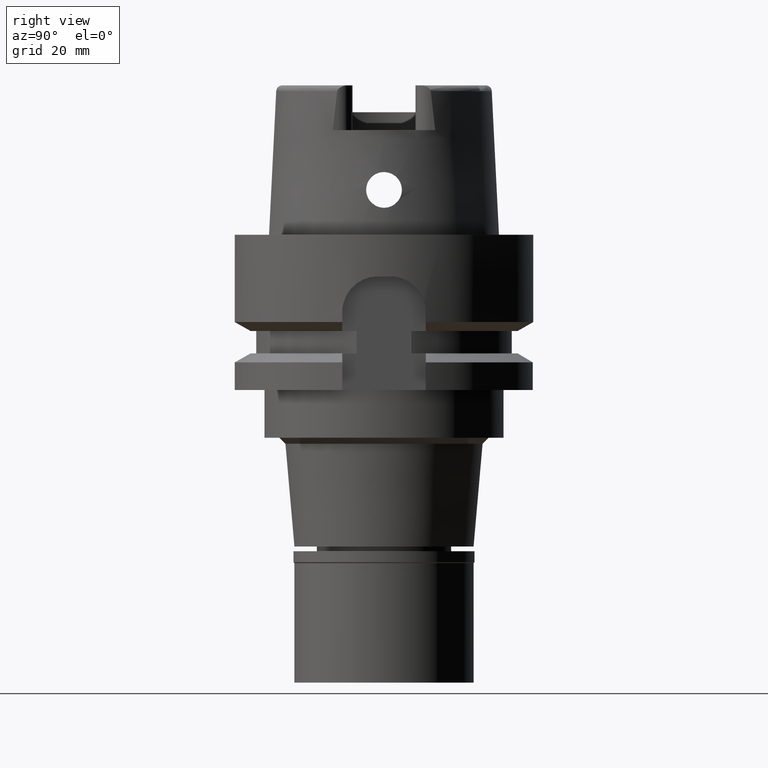
[diagram: clean part render]
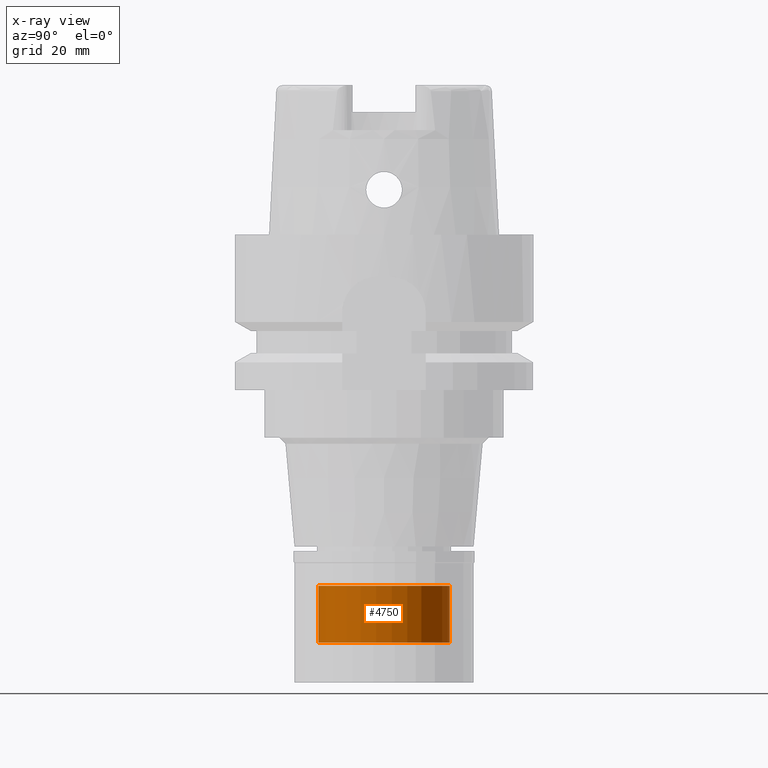
[diagram: x-ray — body ghosted, one internal face saturated and labeled with its STEP entity id]
A machine part, right view, then the same camera in x-ray: the body is ghosted and one INTERNAL B-rep face — a face not visible from any outside direction — is saturated and labeled: STEP entity #4750.
In plain terms, the highlighted cylindrical surface (partial cylindrical patch) has radius 11 mm, axis along (0, 0, 1).
Its self-contained STEP definition (entity closure, byte-faithful):
#249 = EDGE_CURVE ( 'NONE', #1513, #1695, #1521, .T. ) ;
#377 = VERTEX_POINT ( 'NONE', #1760 ) ;
#587 = CARTESIAN_POINT ( 'NONE',  ( 0.0000000000000000000, 0.0000000000000000000, -58.79999999999999716 ) ) ;
#711 = LINE ( 'NONE', #2382, #5045 ) ;
#1286 = DIRECTION ( 'NONE',  ( 0.0000000000000000000, 0.0000000000000000000, 1.000000000000000000 ) ) ;
#1326 = DIRECTION ( 'NONE',  ( 0.0000000000000000000, -1.000000000000000000, 0.0000000000000000000 ) ) ;
#1330 = DIRECTION ( 'NONE',  ( 0.0000000000000000000, 0.0000000000000000000, -1.000000000000000000 ) ) ;
#1340 = DIRECTION ( 'NONE',  ( 0.0000000000000000000, 1.000000000000000000, 0.0000000000000000000 ) ) ;
#1513 = VERTEX_POINT ( 'NONE', #2804 ) ;
#1521 = LINE ( 'NONE', #3213, #3431 ) ;
#1536 = EDGE_CURVE ( 'NONE', #377, #1695, #3152, .T. ) ;
#1673 = CYLINDRICAL_SURFACE ( 'NONE', #3290, 11.00000000000000000 ) ;
#1691 = CARTESIAN_POINT ( 'NONE',  ( 0.0000000000000000000, -11.00000000000000000, -58.79999999999999716 ) ) ;
#1695 = VERTEX_POINT ( 'NONE', #4913 ) ;
#1760 = CARTESIAN_POINT ( 'NONE',  ( 0.0000000000000000000, -11.00000000000000000, -68.29999999999999716 ) ) ;
#1975 = CIRCLE ( 'NONE', #4384, 11.00000000000000000 ) ;
#1997 = AXIS2_PLACEMENT_3D ( 'NONE', #2125, #3327, #1326 ) ;
#2125 = CARTESIAN_POINT ( 'NONE',  ( 0.0000000000000000000, 0.0000000000000000000, -68.29999999999999716 ) ) ;
#2382 = CARTESIAN_POINT ( 'NONE',  ( 0.0000000000000000000, -11.00000000000000000, -58.79999999999999716 ) ) ;
#2445 = EDGE_LOOP ( 'NONE', ( #4221, #4204, #2701, #4303 ) ) ;
#2586 = DIRECTION ( 'NONE',  ( 0.0000000000000000000, 1.000000000000000000, 0.0000000000000000000 ) ) ;
#2701 = ORIENTED_EDGE ( 'NONE', *, *, #1536, .T. ) ;
#2804 = CARTESIAN_POINT ( 'NONE',  ( 0.0000000000000000000, 11.00000000000000000, -58.79999999999999716 ) ) ;
#3152 = CIRCLE ( 'NONE', #1997, 11.00000000000000000 ) ;
#3213 = CARTESIAN_POINT ( 'NONE',  ( 0.0000000000000000000, 11.00000000000000000, -58.79999999999999716 ) ) ;
#3290 = AXIS2_PLACEMENT_3D ( 'NONE', #3369, #1286, #1340 ) ;
#3327 = DIRECTION ( 'NONE',  ( 0.0000000000000000000, 0.0000000000000000000, 1.000000000000000000 ) ) ;
#3369 = CARTESIAN_POINT ( 'NONE',  ( 0.0000000000000000000, 0.0000000000000000000, -72.96500000000000341 ) ) ;
#3431 = VECTOR ( 'NONE', #4915, 1000.000000000000000 ) ;
#3697 = EDGE_CURVE ( 'NONE', #1513, #5204, #1975, .T. ) ;
#3790 = FACE_OUTER_BOUND ( 'NONE', #2445, .T. ) ;
#3953 = DIRECTION ( 'NONE',  ( 0.0000000000000000000, 0.0000000000000000000, -1.000000000000000000 ) ) ;
#4204 = ORIENTED_EDGE ( 'NONE', *, *, #5123, .T. ) ;
#4221 = ORIENTED_EDGE ( 'NONE', *, *, #3697, .T. ) ;
#4303 = ORIENTED_EDGE ( 'NONE', *, *, #249, .F. ) ;
#4384 = AXIS2_PLACEMENT_3D ( 'NONE', #587, #3953, #2586 ) ;
#4750 = ADVANCED_FACE ( 'NONE', ( #3790 ), #1673, .T. ) ;
#4913 = CARTESIAN_POINT ( 'NONE',  ( 0.0000000000000000000, 11.00000000000000000, -68.29999999999999716 ) ) ;
#4915 = DIRECTION ( 'NONE',  ( 0.0000000000000000000, 0.0000000000000000000, -1.000000000000000000 ) ) ;
#5045 = VECTOR ( 'NONE', #1330, 1000.000000000000000 ) ;
#5123 = EDGE_CURVE ( 'NONE', #5204, #377, #711, .T. ) ;
#5204 = VERTEX_POINT ( 'NONE', #1691 ) ;